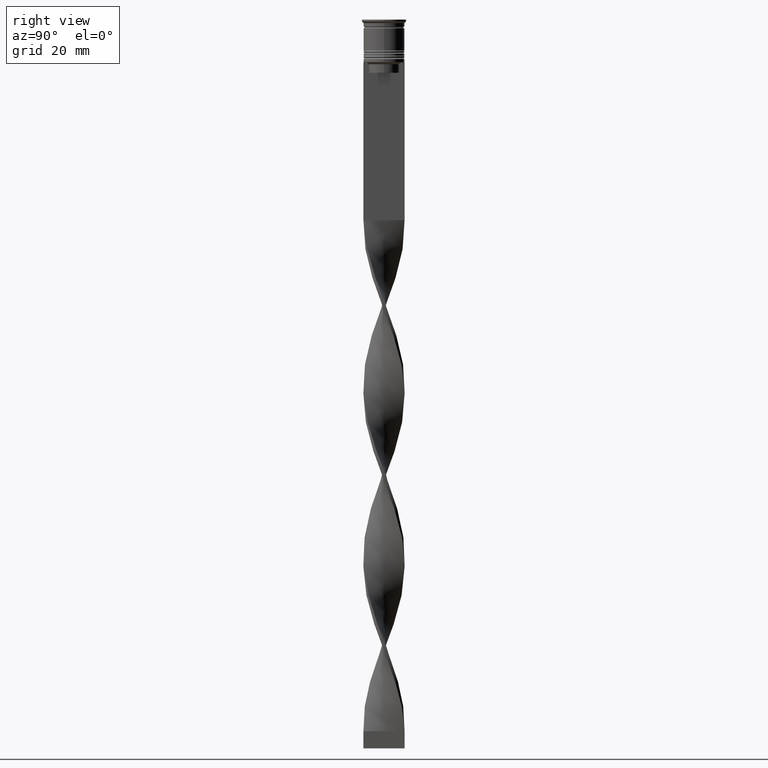
[diagram: clean part render]
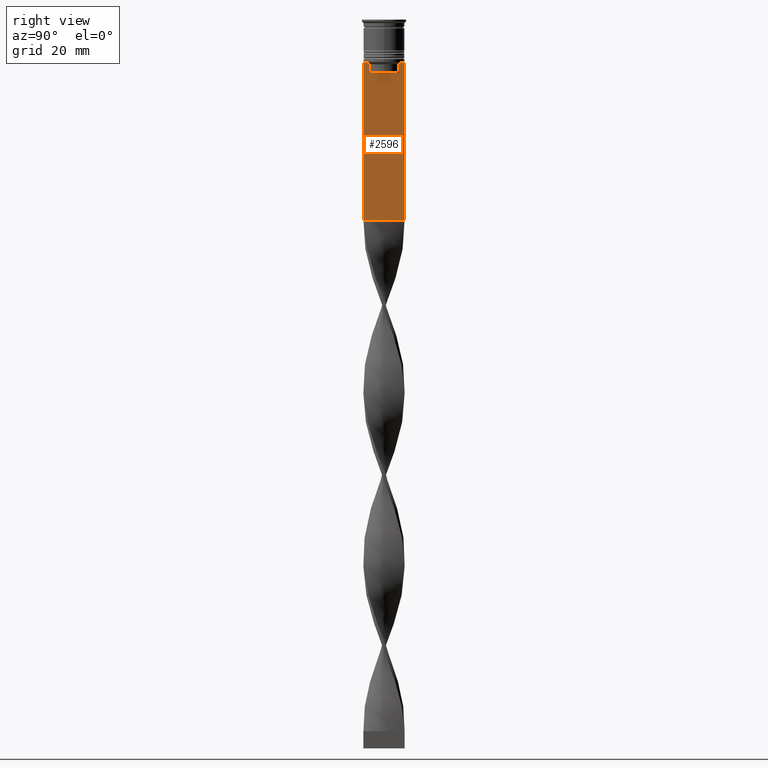
[diagram: same view with one face highlighted and labeled with its STEP entity id]
A machine part, right view. The second image highlights one B-rep face of the part: STEP entity #2596.
In plain terms, the highlighted planar face has unit normal (-1, 0, 0).
Its self-contained STEP definition (entity closure, byte-faithful):
#84 = VERTEX_POINT ( 'NONE', #667 ) ;
#181 = VECTOR ( 'NONE', #2740, 1000.000000000000000 ) ;
#226 = CARTESIAN_POINT ( 'NONE',  ( 0.5000000000000002220, 4.371498598878878816, 0.000000000000000000 ) ) ;
#283 = EDGE_CURVE ( 'NONE', #555, #3670, #1212, .T. ) ;
#325 = EDGE_CURVE ( 'NONE', #2157, #1007, #3300, .T. ) ;
#344 = B_SPLINE_CURVE_WITH_KNOTS ( 'NONE', 3,
 ( #2468, #662, #1872, #606 ),
 .UNSPECIFIED., .F., .F.,
 ( 4, 4 ),
 ( 0.008336552452178421987, 0.009045730124312839626 ),
 .UNSPECIFIED. ) ;
#402 = EDGE_CURVE ( 'NONE', #1817, #3316, #1195, .T. ) ;
#482 = VECTOR ( 'NONE', #3515, 1000.000000000000000 ) ;
#489 = CARTESIAN_POINT ( 'NONE',  ( 0.5000000000000002220, -6.000000000000000000, -12.50000000000000000 ) ) ;
#555 = VERTEX_POINT ( 'NONE', #3222 ) ;
#577 = ORIENTED_EDGE ( 'NONE', *, *, #2449, .T. ) ;
#581 = CARTESIAN_POINT ( 'NONE',  ( 0.5000000000000002220, -6.000000000000000000, -12.50000000000000000 ) ) ;
#606 = CARTESIAN_POINT ( 'NONE',  ( 0.5000000000000002220, 4.371498598878878816, -13.00000000000000178 ) ) ;
#631 = VECTOR ( 'NONE', #908, 1000.000000000000000 ) ;
#662 = CARTESIAN_POINT ( 'NONE',  ( 0.5000000000000002220, 4.706831415367288329, -12.66671683478479160 ) ) ;
#667 = CARTESIAN_POINT ( 'NONE',  ( 0.5000000000000002220, 5.878775382679627626, -12.50000000000000000 ) ) ;
#699 = VERTEX_POINT ( 'NONE', #1802 ) ;
#707 = VERTEX_POINT ( 'NONE', #2719 ) ;
#781 = CARTESIAN_POINT ( 'NONE',  ( 0.5000000000000002220, 4.874423042781576676, -12.50000000000000000 ) ) ;
#793 = LINE ( 'NONE', #226, #2583 ) ;
#806 = ORIENTED_EDGE ( 'NONE', *, *, #1583, .T. ) ;
#857 = VECTOR ( 'NONE', #2426, 1000.000000000000000 ) ;
#888 = EDGE_CURVE ( 'NONE', #3316, #2157, #3365, .T. ) ;
#908 = DIRECTION ( 'NONE',  ( 0.000000000000000000, 0.000000000000000000, -1.000000000000000000 ) ) ;
#973 = DIRECTION ( 'NONE',  ( -1.000000000000000000, 0.000000000000000000, 0.000000000000000000 ) ) ;
#1007 = VERTEX_POINT ( 'NONE', #2436 ) ;
#1187 = DIRECTION ( 'NONE',  ( 0.000000000000000000, -1.000000000000000000, 0.000000000000000000 ) ) ;
#1195 = LINE ( 'NONE', #1215, #857 ) ;
#1212 = LINE ( 'NONE', #1306, #2192 ) ;
#1215 = CARTESIAN_POINT ( 'NONE',  ( 0.5000000000000002220, -4.371498598878878816, 0.000000000000000000 ) ) ;
#1246 = CARTESIAN_POINT ( 'NONE',  ( 0.5000000000000002220, -4.539195586926423331, -12.83338928448044314 ) ) ;
#1282 = CARTESIAN_POINT ( 'NONE',  ( 0.5000000000000002220, -4.874423042781576676, -12.50000000000000000 ) ) ;
#1300 = DIRECTION ( 'NONE',  ( 0.000000000000000000, -1.000000000000000000, 0.000000000000000000 ) ) ;
#1306 = CARTESIAN_POINT ( 'NONE',  ( 0.5000000000000002220, 6.000000000000000888, -0.4584054212077061097 ) ) ;
#1402 = CARTESIAN_POINT ( 'NONE',  ( 0.5000000000000002220, -6.000000000000000000, -12.50000000000000000 ) ) ;
#1420 = EDGE_CURVE ( 'NONE', #84, #1575, #2479, .T. ) ;
#1506 = CARTESIAN_POINT ( 'NONE',  ( 0.5000000000000002220, 4.399999999999999467, -15.50000000000000000 ) ) ;
#1548 = EDGE_CURVE ( 'NONE', #1007, #707, #3472, .T. ) ;
#1575 = VERTEX_POINT ( 'NONE', #781 ) ;
#1583 = EDGE_CURVE ( 'NONE', #3783, #3670, #2568, .T. ) ;
#1635 = DIRECTION ( 'NONE',  ( 0.000000000000000000, -1.000000000000000000, 0.000000000000000000 ) ) ;
#1636 = VECTOR ( 'NONE', #1187, 1000.000000000000000 ) ;
#1652 = EDGE_LOOP ( 'NONE', ( #2301, #2331, #577, #1943, #2367, #2344, #1906, #2986, #2190, #806, #3040, #3662 ) ) ;
#1802 = CARTESIAN_POINT ( 'NONE',  ( 0.5000000000000002220, 4.371498598878878816, -13.00000000000000178 ) ) ;
#1817 = VERTEX_POINT ( 'NONE', #3843 ) ;
#1872 = CARTESIAN_POINT ( 'NONE',  ( 0.5000000000000002220, 4.539195634199896467, -12.83338923751318816 ) ) ;
#1906 = ORIENTED_EDGE ( 'NONE', *, *, #325, .T. ) ;
#1943 = ORIENTED_EDGE ( 'NONE', *, *, #3259, .T. ) ;
#1964 = CARTESIAN_POINT ( 'NONE',  ( 0.5000000000000002220, -6.000000000000000000, -12.50000000000000000 ) ) ;
#1978 = EDGE_CURVE ( 'NONE', #1575, #699, #344, .T. ) ;
#2013 = CARTESIAN_POINT ( 'NONE',  ( 0.5000000000000002220, 6.000000000000000888, -58.50000000000000000 ) ) ;
#2155 = FACE_OUTER_BOUND ( 'NONE', #1652, .T. ) ;
#2157 = VERTEX_POINT ( 'NONE', #3738 ) ;
#2190 = ORIENTED_EDGE ( 'NONE', *, *, #3517, .T. ) ;
#2192 = VECTOR ( 'NONE', #2518, 1000.000000000000000 ) ;
#2262 = VECTOR ( 'NONE', #3194, 1000.000000000000000 ) ;
#2300 = CARTESIAN_POINT ( 'NONE',  ( 0.5000000000000002220, -5.999999999999999112, -58.50000000000000000 ) ) ;
#2301 = ORIENTED_EDGE ( 'NONE', *, *, #1420, .T. ) ;
#2331 = ORIENTED_EDGE ( 'NONE', *, *, #1978, .T. ) ;
#2344 = ORIENTED_EDGE ( 'NONE', *, *, #888, .T. ) ;
#2367 = ORIENTED_EDGE ( 'NONE', *, *, #402, .T. ) ;
#2382 = DIRECTION ( 'NONE',  ( 0.000000000000000000, 0.000000000000000000, -1.000000000000000000 ) ) ;
#2408 = CARTESIAN_POINT ( 'NONE',  ( 0.5000000000000002220, -6.000000000000000000, -0.4584054212077061097 ) ) ;
#2426 = DIRECTION ( 'NONE',  ( -0.000000000000000000, -0.000000000000000000, 1.000000000000000000 ) ) ;
#2436 = CARTESIAN_POINT ( 'NONE',  ( 0.5000000000000002220, -5.878775382679627626, -12.50000000000000000 ) ) ;
#2449 = EDGE_CURVE ( 'NONE', #699, #3043, #793, .T. ) ;
#2468 = CARTESIAN_POINT ( 'NONE',  ( 0.5000000000000002220, 4.874423042781576676, -12.50000000000000000 ) ) ;
#2479 = LINE ( 'NONE', #581, #181 ) ;
#2490 = CARTESIAN_POINT ( 'NONE',  ( 0.5000000000000002220, -4.706831372970962768, -12.66671687695981774 ) ) ;
#2518 = DIRECTION ( 'NONE',  ( 0.000000000000000000, 0.000000000000000000, -1.000000000000000000 ) ) ;
#2568 = LINE ( 'NONE', #3759, #2262 ) ;
#2583 = VECTOR ( 'NONE', #2382, 1000.000000000000000 ) ;
#2596 = ADVANCED_FACE ( 'NONE', ( #2155 ), #2725, .F. ) ;
#2719 = CARTESIAN_POINT ( 'NONE',  ( 0.5000000000000002220, -6.000000000000000000, -12.50000000000000000 ) ) ;
#2725 = PLANE ( 'NONE',  #3586 ) ;
#2740 = DIRECTION ( 'NONE',  ( 0.000000000000000000, -1.000000000000000000, 0.000000000000000000 ) ) ;
#2782 = DIRECTION ( 'NONE',  ( 0.000000000000000000, 0.000000000000000000, 1.000000000000000000 ) ) ;
#2811 = CARTESIAN_POINT ( 'NONE',  ( 0.5000000000000002220, -4.371498598878878816, -13.00000000000000178 ) ) ;
#2851 = LINE ( 'NONE', #1964, #3275 ) ;
#2947 = CARTESIAN_POINT ( 'NONE',  ( 0.5000000000000002220, 4.371498598878878816, -15.50000000000000000 ) ) ;
#2985 = LINE ( 'NONE', #3656, #631 ) ;
#2986 = ORIENTED_EDGE ( 'NONE', *, *, #1548, .T. ) ;
#3040 = ORIENTED_EDGE ( 'NONE', *, *, #283, .F. ) ;
#3043 = VERTEX_POINT ( 'NONE', #2947 ) ;
#3050 = CARTESIAN_POINT ( 'NONE',  ( 0.5000000000000002220, -4.371498598878878816, -13.00000000000000178 ) ) ;
#3146 = VECTOR ( 'NONE', #1635, 1000.000000000000000 ) ;
#3194 = DIRECTION ( 'NONE',  ( 0.000000000000000000, 1.000000000000000000, 0.000000000000000000 ) ) ;
#3222 = CARTESIAN_POINT ( 'NONE',  ( 0.5000000000000002220, 6.000000000000000888, -12.50000000000000000 ) ) ;
#3259 = EDGE_CURVE ( 'NONE', #3043, #1817, #3897, .T. ) ;
#3275 = VECTOR ( 'NONE', #1300, 1000.000000000000000 ) ;
#3300 = LINE ( 'NONE', #1402, #482 ) ;
#3316 = VERTEX_POINT ( 'NONE', #2811 ) ;
#3365 = B_SPLINE_CURVE_WITH_KNOTS ( 'NONE', 3,
 ( #3050, #1246, #2490, #1282 ),
 .UNSPECIFIED., .F., .F.,
 ( 4, 4 ),
 ( 0.02089901220910808308, 0.02161421017310286019 ),
 .UNSPECIFIED. ) ;
#3433 = EDGE_CURVE ( 'NONE', #555, #84, #2851, .T. ) ;
#3472 = LINE ( 'NONE', #489, #3146 ) ;
#3515 = DIRECTION ( 'NONE',  ( 0.000000000000000000, -1.000000000000000000, 0.000000000000000000 ) ) ;
#3517 = EDGE_CURVE ( 'NONE', #707, #3783, #2985, .T. ) ;
#3586 = AXIS2_PLACEMENT_3D ( 'NONE', #2408, #973, #2782 ) ;
#3656 = CARTESIAN_POINT ( 'NONE',  ( 0.5000000000000002220, -6.000000000000000000, -0.4584054212077061097 ) ) ;
#3662 = ORIENTED_EDGE ( 'NONE', *, *, #3433, .T. ) ;
#3670 = VERTEX_POINT ( 'NONE', #2013 ) ;
#3738 = CARTESIAN_POINT ( 'NONE',  ( 0.5000000000000002220, -4.874423042781576676, -12.50000000000000000 ) ) ;
#3759 = CARTESIAN_POINT ( 'NONE',  ( 0.5000000000000002220, -6.000000000000000000, -58.50000000000000000 ) ) ;
#3783 = VERTEX_POINT ( 'NONE', #2300 ) ;
#3843 = CARTESIAN_POINT ( 'NONE',  ( 0.5000000000000002220, -4.371498598878878816, -15.50000000000000000 ) ) ;
#3897 = LINE ( 'NONE', #1506, #1636 ) ;